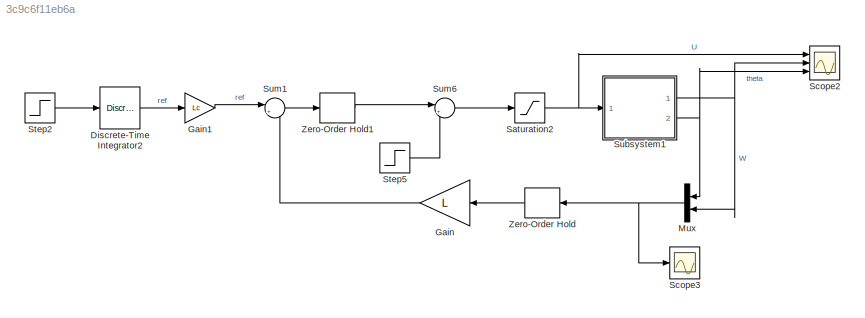
MODEL slx_3c9c6f11eb6a
KIND model
CONFIG AbsTol = auto
CONFIG EnableMultiTasking = on
CONFIG FixedStep = auto
CONFIG MaxStep = auto
CONFIG MinStep = auto
CONFIG PostLoadFcn = try, \ncodertarget.arduinobase.registry.setBaudRate(gcs,115200)\ndisp('baud rate set to 115200 for external mode hardware serial')\nbaudrate='set_to_115200'\ncatch\ndisp('baud rate setting not needed in this version')\nend
CONFIG RelTol = 1e-3
CONFIG SampleTimeConstraint = Unconstrained
CONFIG SolverName = ode45
CONFIG StartTime = 0.0
CONFIG StopTime = 10.0
BLOCK [DiscreteIntegrator] Discrete-Time Integrator2
  ICPrevOutput = DiscIntNeverNeededParam
  ICPrevScaledInput = DiscIntNeverNeededParam
  InitialConditionSetting = Auto
  LimitOutput = on
  LowerSaturationLimit = -50
  Ports = [1, 1]
  SampleTime = h
  UpperSaturationLimit = 50
BLOCK [Gain] Gain
  Gain = L
  Multiplication = Matrix(K*u) (u vector)
  NameLocation = top
BLOCK [Gain] Gain1
  Gain = Lc
BLOCK [Mux] Mux
  DisplayOption = bar
  Inputs = 2
  NameLocation = top
  Ports = [2, 1]
BLOCK [Saturate] Saturation2
  LowerLimit = -4.8
  UpperLimit = 4.8
BLOCK [Scope] Scope2
  Floating = off
  NumInputPorts = 3
  Ports = [3]
  ScopeSpecificationString = Simulink.scopes.TimeScopeBlockCfg('CurrentConfiguration', extmgr.ConfigurationSet(extmgr.Configuration('Core','General UI',true,'FigureColor',[1 1 1]),extmgr.Configuration('Core','Source UI',true),extmgr.Configuration('Sources','WiredSimulink',true,'DataLoggingVariableName','ScopeData2'),extmgr.Configuration('Visuals','Time Domain',true,'SerializedDisplays',{struct('MinYLimReal','-52.16397','MaxYL...<+1715ch>
BLOCK [Scope] Scope3
  Floating = off
  NumInputPorts = 1
  Ports = [1]
  ScopeSpecificationString = Simulink.scopes.TimeScopeBlockCfg('CurrentConfiguration', extmgr.ConfigurationSet(extmgr.Configuration('Core','General UI',true,'FigureColor',[1 1 1]),extmgr.Configuration('Core','Source UI',true),extmgr.Configuration('Sources','WiredSimulink',true,'DataLoggingVariableName','ScopeData3'),extmgr.Configuration('Visuals','Time Domain',true,'SerializedDisplays',{struct('MinYLimReal','-84.61235','MaxYL...<+1633ch>
BLOCK [Step] Step2
  After = 60
  SampleTime = 0
BLOCK [Step] Step5
  After = 2
  SampleTime = 0
  Time = 10
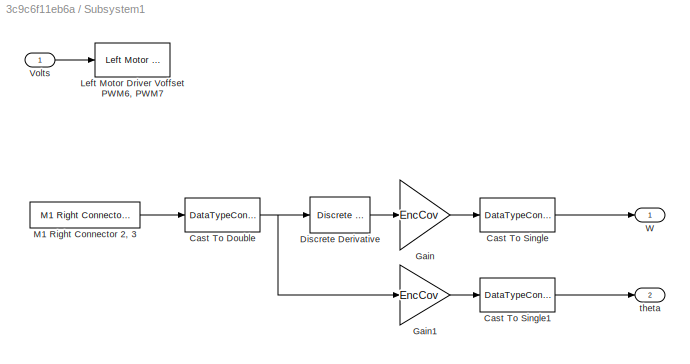
BLOCK [SubSystem] Subsystem1
  Ports = [1, 2]
  RequestExecContextInheritance = off
BLOCK [DataTypeConversion] Subsystem1/Cast To Double
  OutDataTypeStr = double
  RndMeth = Floor
  SaturateOnIntegerOverflow = off
BLOCK [DataTypeConversion] Subsystem1/Cast To Single
  OutDataTypeStr = single
  RndMeth = Floor
  SaturateOnIntegerOverflow = off
BLOCK [DataTypeConversion] Subsystem1/Cast To Single1
  OutDataTypeStr = single
  RndMeth = Floor
  SaturateOnIntegerOverflow = off
BLOCK [Reference] Subsystem1/Discrete Derivative  REF=simulink/Discrete/Discrete Derivative
  Ports = [1, 1]
  SourceBlock = simulink/Discrete/Discrete Derivative
  SourceProductBaseCode = SL
  SourceType = Discrete Derivative
BLOCK [Gain] Subsystem1/Gain
  Gain = EncCov
BLOCK [Gain] Subsystem1/Gain1
  Gain = EncCov
BLOCK [Reference] Subsystem1/Left Motor Driver Voffset PWM6, PWM7  REF=MinSegLibrary_M2V5/Left Motor Driver
Voffset PWM6, PWM7
  Ports = [1]
  SourceBlock = MinSegLibrary_M2V5/Left Motor Driver\nVoffset PWM6, PWM7
  SourceProductName = Rensselaer Arduino Support Package
BLOCK [Reference] Subsystem1/M1 Right Connector 2, 3  REF=MinSegLibrary_M2V5/M1 Right Connector 2, 3
  Ports = [0, 1]
  SourceBlock = MinSegLibrary_M2V5/M1 Right Connector 2, 3
  SourceProductName = Rensselaer Arduino Support Package
  SourceType = Encoder_arduino
BLOCK [Inport] Subsystem1/Volts
BLOCK [Outport] Subsystem1/W
BLOCK [Outport] Subsystem1/theta
  Port = 2
BLOCK [Sum] Sum1
  Inputs = |+-
  Ports = [2, 1]
BLOCK [Sum] Sum6
  Inputs = |+-
  Ports = [2, 1]
BLOCK [ZeroOrderHold] Zero-Order Hold
  NameLocation = top
  SampleTime = h
BLOCK [ZeroOrderHold] Zero-Order Hold1
  SampleTime = h
LINE Discrete-Time Integrator2:1 -> Gain1:1
LINE Gain1:1 -> Sum1:1
LINE Gain:1 -> Sum1:2
NET Mux:1 -> Scope3:1, Zero-Order Hold:1
NET Saturation2:1 -> Scope2:1, Subsystem1:1
LINE Step2:1 -> Discrete-Time Integrator2:1
LINE Step5:1 -> Sum6:2
NET Subsystem1/Cast To Double:1 -> Subsystem1/Discrete Derivative:1, Subsystem1/Gain1:1
LINE Subsystem1/Cast To Single1:1 -> Subsystem1/theta:1
LINE Subsystem1/Cast To Single:1 -> Subsystem1/W:1
LINE Subsystem1/Discrete Derivative:1 -> Subsystem1/Gain:1
LINE Subsystem1/Gain1:1 -> Subsystem1/Cast To Single1:1
LINE Subsystem1/Gain:1 -> Subsystem1/Cast To Single:1
LINE Subsystem1/M1 Right Connector 2, 3:1 -> Subsystem1/Cast To Double:1
LINE Subsystem1/Volts:1 -> Subsystem1/Left Motor Driver Voffset PWM6, PWM7:1
NET Subsystem1:1 -> Mux:2, Scope2:2
NET Subsystem1:2 -> Mux:1, Scope2:3
LINE Sum1:1 -> Zero-Order Hold1:1
LINE Sum6:1 -> Saturation2:1
LINE Zero-Order Hold1:1 -> Sum6:1
LINE Zero-Order Hold:1 -> Gain:1
note: NET lines group one-source signal fan-out (src -> all destinations, sorted); 1:1 wires keep LINE
